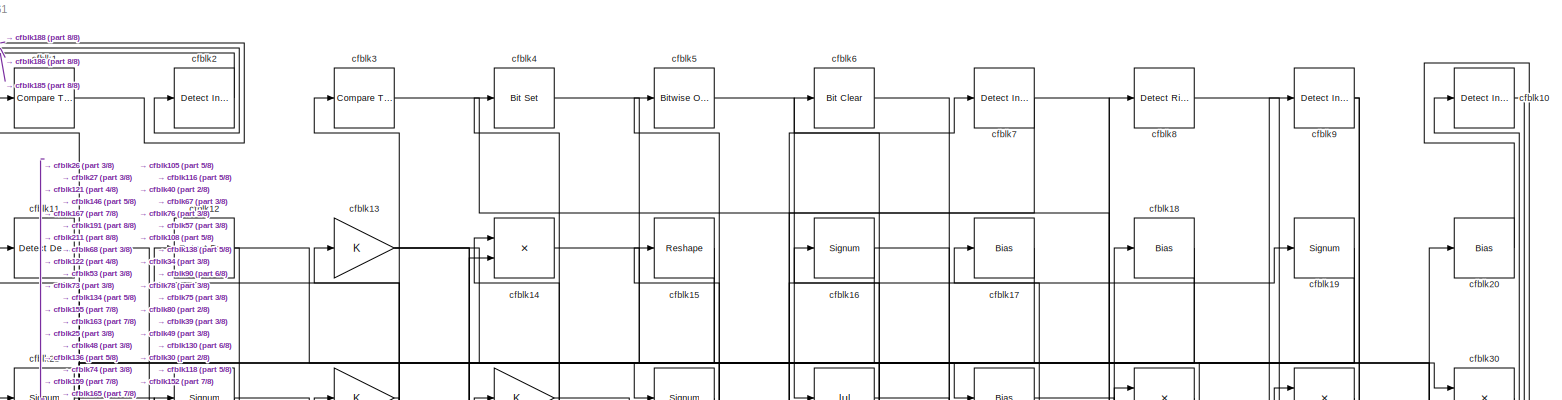
[diagram: root canvas - part 1/8, full width, top band]
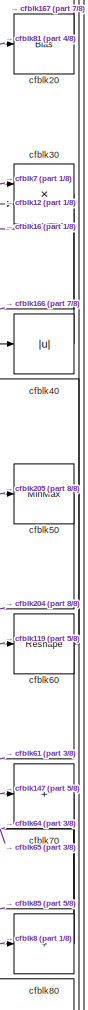
[diagram: root canvas - part 2/8, top right region]
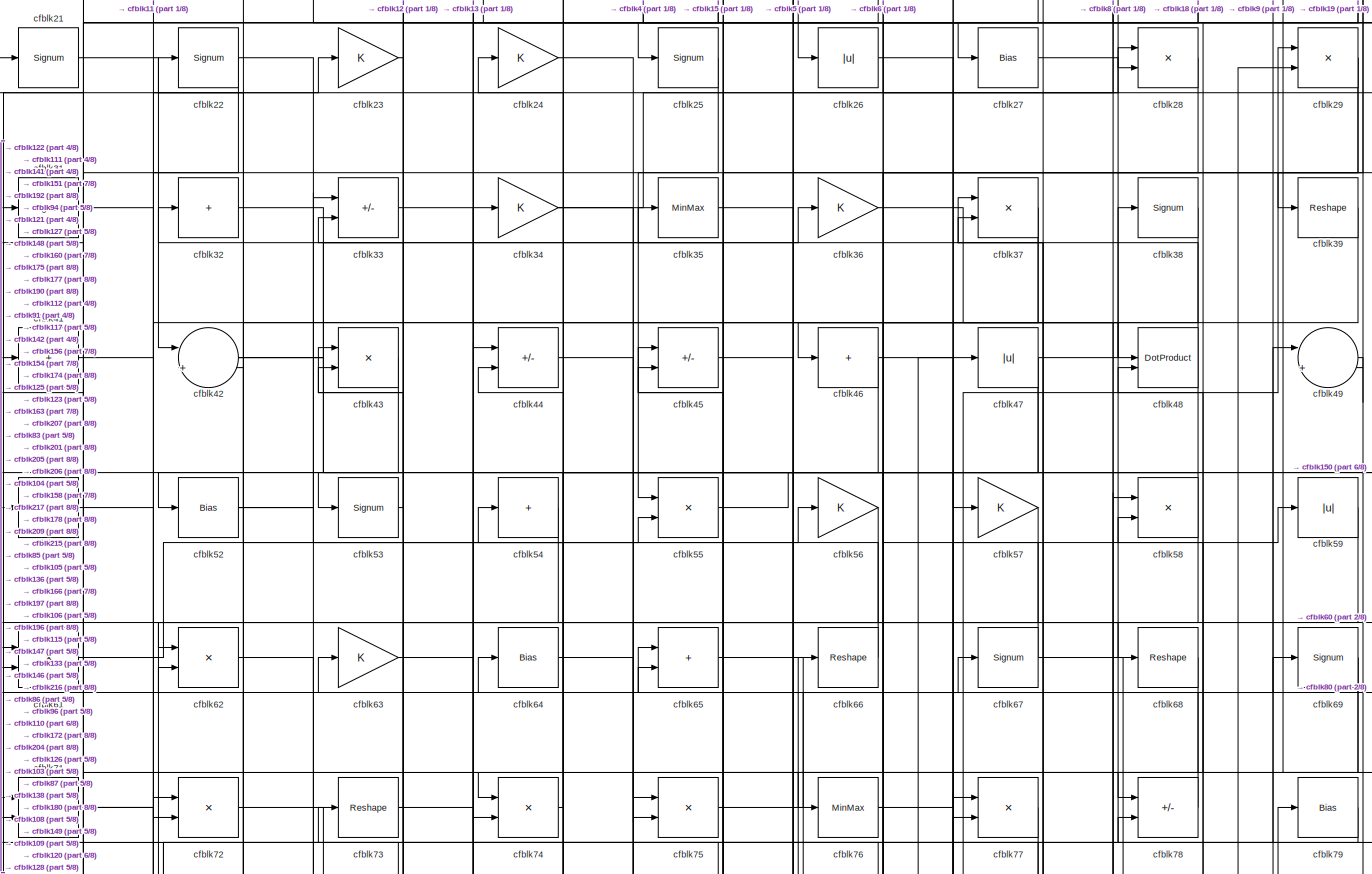
[diagram: root canvas - part 3/8, full width, top band]
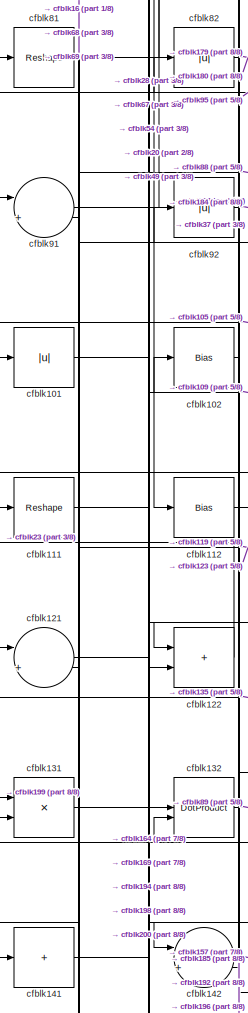
[diagram: root canvas - part 4/8, middle left region]
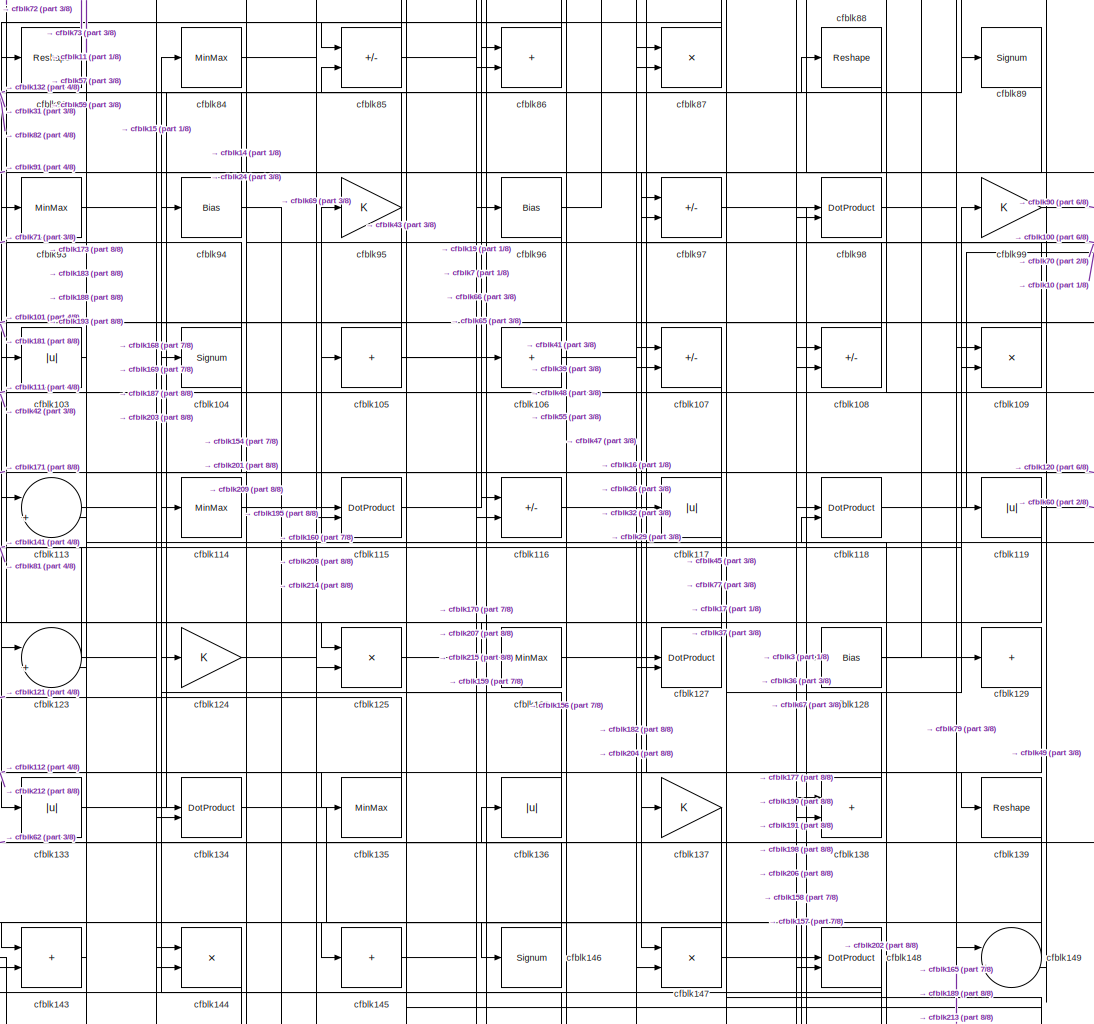
[diagram: root canvas - part 5/8, central region]
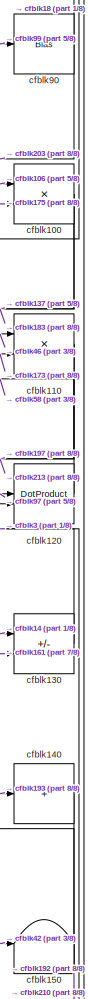
[diagram: root canvas - part 6/8, middle right region]
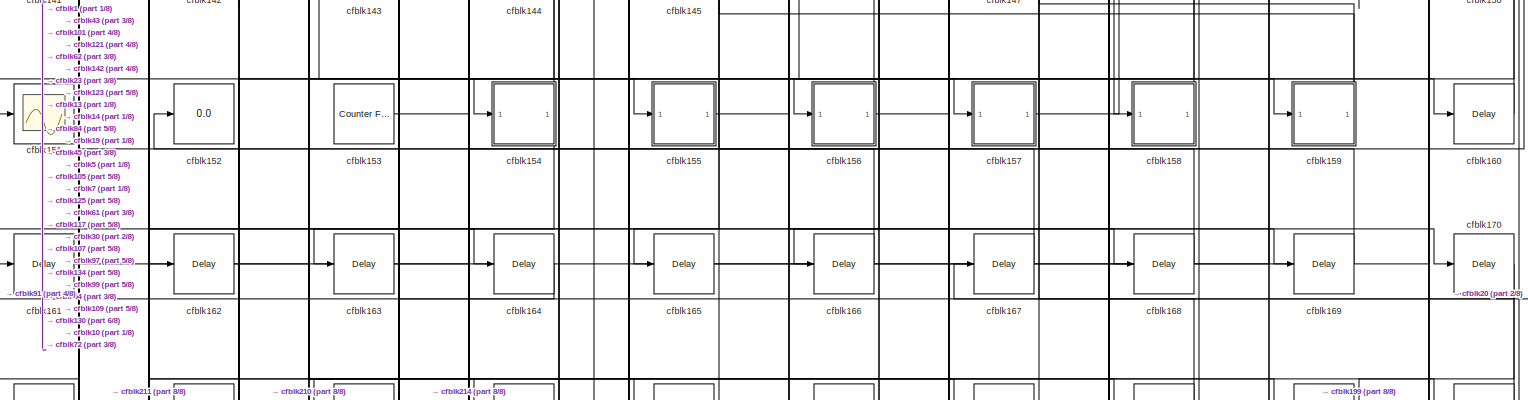
[diagram: root canvas - part 7/8, full width, bottom band]
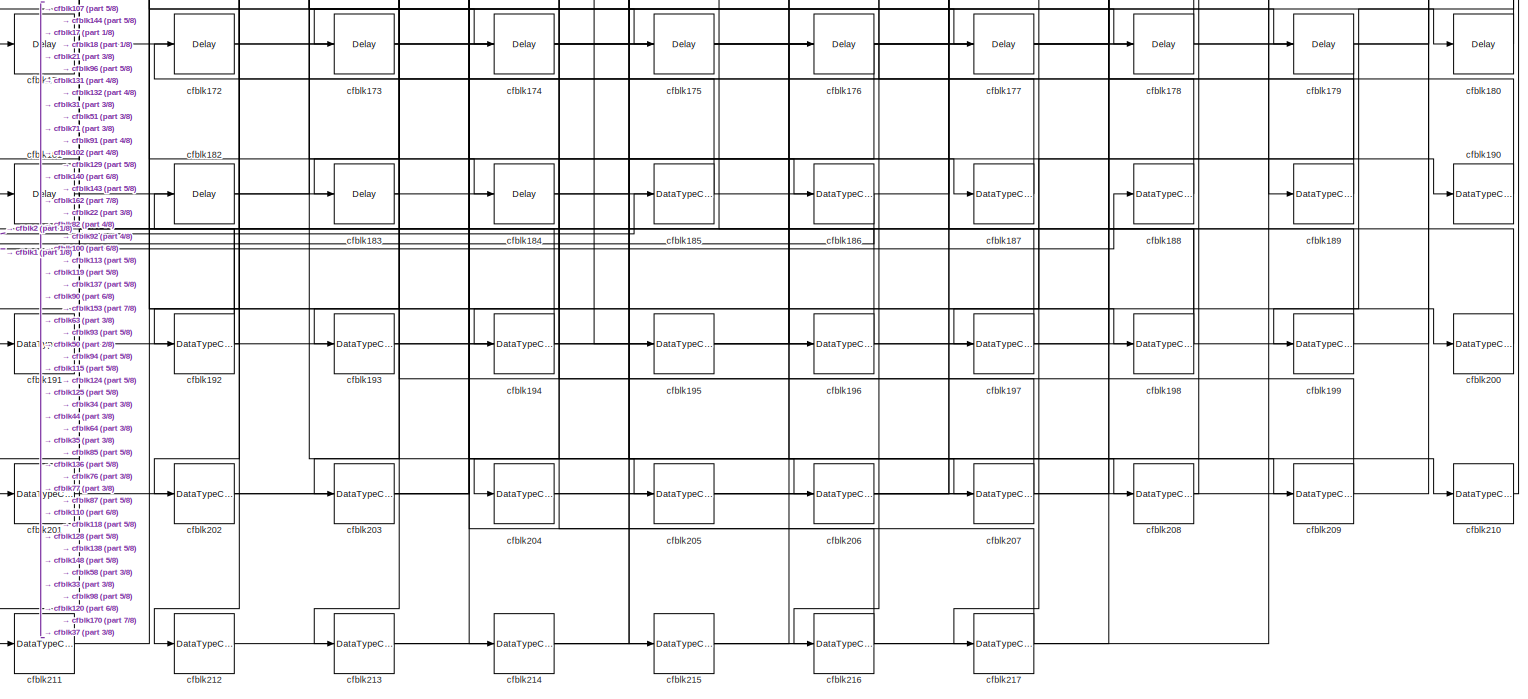
[diagram: root canvas - part 8/8, full width, bottom band]
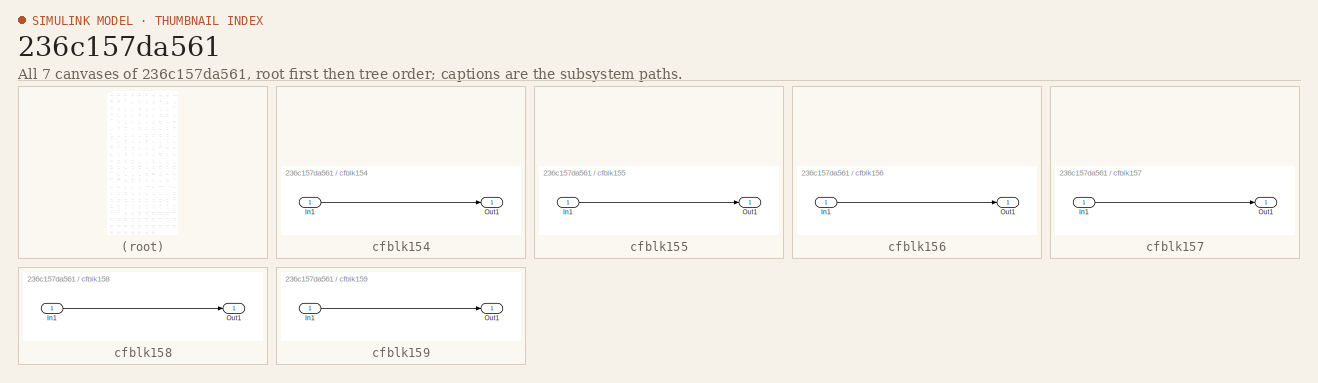
[diagram: thumbnail index - all 7 canvases of the model, root first then tree order]
MODEL slx_236c157da561
KIND model
CONFIG AbsTol = auto
CONFIG EnableMultiTasking = off
CONFIG FixedStep = auto
CONFIG MaxStep = auto
CONFIG MinStep = auto
CONFIG RelTol = 1e-3
CONFIG SampleTimeConstraint = Unconstrained
CONFIG SolverName = VariableStepAuto
CONFIG StartTime = 0.0
CONFIG StopTime = 10.0
BLOCK [Reference] cfblk1  REF=hdlsllib/Logic and Bit
Operations/Compare
To Constant
  SourceBlock = hdlsllib/Logic and Bit\nOperations/Compare\nTo Constant
  SourceType = Compare To Constant
BLOCK [Reference] cfblk10  REF=simulink/Logic and Bit
Operations/Detect
Increase
  LibrarySourceBlock = hdlsllib/Logic and Bit\nOperations/Detect\nIncrease
  SourceBlock = simulink/Logic and Bit\nOperations/Detect\nIncrease
  SourceType = Detect Increase
BLOCK [Product] cfblk100
  Inputs = */
  RndMeth = Zero
  SaturateOnIntegerOverflow = on
BLOCK [Abs] cfblk101
  SaturateOnIntegerOverflow = off
BLOCK [Bias] cfblk102
  Bias = 0.0
  SaturateOnIntegerOverflow = off
BLOCK [Abs] cfblk103
  SaturateOnIntegerOverflow = off
BLOCK [Signum] cfblk104
BLOCK [Sum] cfblk105
  IconShape = rectangular
  Inputs = +
BLOCK [Sum] cfblk106
  IconShape = rectangular
  Inputs = +
BLOCK [Sum] cfblk107
  IconShape = rectangular
  Inputs = +-
BLOCK [Sum] cfblk108
  IconShape = rectangular
  Inputs = +-
BLOCK [Product] cfblk109
  Inputs = */
  RndMeth = Zero
  SaturateOnIntegerOverflow = on
BLOCK [Reference] cfblk11  REF=simulink/Logic and Bit
Operations/Detect
Decrease
  LibrarySourceBlock = hdlsllib/Logic and Bit\nOperations/Detect\nDecrease
  SourceBlock = simulink/Logic and Bit\nOperations/Detect\nDecrease
  SourceType = Detect Decrease
BLOCK [Product] cfblk110
  Inputs = */
  RndMeth = Zero
  SaturateOnIntegerOverflow = on
BLOCK [Reshape] cfblk111
BLOCK [Bias] cfblk112
  Bias = 0.0
  SaturateOnIntegerOverflow = off
BLOCK [Sum] cfblk113
  Inputs = |++
BLOCK [MinMax] cfblk114
BLOCK [DotProduct] cfblk115
  OutDataTypeStr = Inherit: Inherit via internal rule
BLOCK [Sum] cfblk116
  IconShape = rectangular
  Inputs = +-
BLOCK [Abs] cfblk117
  SaturateOnIntegerOverflow = off
BLOCK [DotProduct] cfblk118
  OutDataTypeStr = Inherit: Inherit via internal rule
BLOCK [Abs] cfblk119
  SaturateOnIntegerOverflow = off
BLOCK [Reference] cfblk12  REF=hdlsllib/Logic and Bit
Operations/Detect Fall
Nonpositive
  SourceBlock = hdlsllib/Logic and Bit\nOperations/Detect Fall\nNonpositive
  SourceType = Detect Fall Nonpositive
BLOCK [DotProduct] cfblk120
  OutDataTypeStr = Inherit: Inherit via internal rule
BLOCK [Sum] cfblk121
  Inputs = |++
BLOCK [Sum] cfblk122
  IconShape = rectangular
BLOCK [Sum] cfblk123
  Inputs = |++
BLOCK [Gain] cfblk124
BLOCK [Product] cfblk125
  Inputs = */
  RndMeth = Zero
  SaturateOnIntegerOverflow = on
BLOCK [MinMax] cfblk126
BLOCK [DotProduct] cfblk127
  OutDataTypeStr = Inherit: Inherit via internal rule
BLOCK [Bias] cfblk128
  Bias = 0.0
  SaturateOnIntegerOverflow = off
BLOCK [Sum] cfblk129
  IconShape = rectangular
  Inputs = +
BLOCK [Gain] cfblk13
BLOCK [Sum] cfblk130
  IconShape = rectangular
  Inputs = +-
BLOCK [Product] cfblk131
  Inputs = */
  RndMeth = Zero
  SaturateOnIntegerOverflow = on
BLOCK [DotProduct] cfblk132
  OutDataTypeStr = Inherit: Inherit via internal rule
BLOCK [Abs] cfblk133
  SaturateOnIntegerOverflow = off
BLOCK [DotProduct] cfblk134
  OutDataTypeStr = Inherit: Inherit via internal rule
BLOCK [MinMax] cfblk135
BLOCK [Abs] cfblk136
  SaturateOnIntegerOverflow = off
BLOCK [Gain] cfblk137
BLOCK [Sum] cfblk138
  IconShape = rectangular
BLOCK [Reshape] cfblk139
BLOCK [Product] cfblk14
  Inputs = */
  RndMeth = Zero
  SaturateOnIntegerOverflow = on
BLOCK [Sum] cfblk140
  IconShape = rectangular
  Inputs = +
BLOCK [Sum] cfblk141
  IconShape = rectangular
  Inputs = +
BLOCK [Sum] cfblk142
  Inputs = |++
BLOCK [Sum] cfblk143
  IconShape = rectangular
BLOCK [Product] cfblk144
  Inputs = */
  RndMeth = Zero
  SaturateOnIntegerOverflow = on
BLOCK [Sum] cfblk145
  IconShape = rectangular
  Inputs = +
BLOCK [Signum] cfblk146
BLOCK [Product] cfblk147
  Inputs = */
  RndMeth = Zero
  SaturateOnIntegerOverflow = on
BLOCK [DotProduct] cfblk148
  OutDataTypeStr = Inherit: Inherit via internal rule
BLOCK [Sum] cfblk149
  Inputs = |++
BLOCK [Reshape] cfblk15
BLOCK [Terminator] cfblk150
BLOCK [Scope] cfblk151
  Floating = off
  NumInputPorts = 1
  ScopeSpecificationString = Simulink.scopes.TimeScopeBlockCfg('CurrentConfiguration', extmgr.ConfigurationSet(extmgr.Configuration('Core','General UI',true),extmgr.Configuration('Core','Source UI',true),extmgr.Configuration('Sources','WiredSimulink',true,'DataLoggingVariableName','ScopeData2','DataLoggingSaveFormat','Array','DataLoggingLimitDataPoints',true,'DataLoggingDecimation','1'),extmgr.Configuration('Visuals','Time Do...<+868ch>
BLOCK [Display] cfblk152
  Decimation = 1
BLOCK [Reference] cfblk153  REF=hdlsllib/Sources/Counter
Free-Running
  SourceBlock = hdlsllib/Sources/Counter\nFree-Running
  SourceType = Counter Free-Running
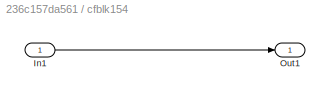
BLOCK [SubSystem] cfblk154
  LibrarySourceBlock = hdlsllib/Ports &\nSubsystems/Subsystem
BLOCK [Inport] cfblk154/In1
BLOCK [Outport] cfblk154/Out1
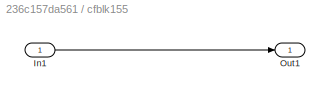
BLOCK [SubSystem] cfblk155
  LibrarySourceBlock = hdlsllib/Ports &\nSubsystems/Subsystem
BLOCK [Inport] cfblk155/In1
BLOCK [Outport] cfblk155/Out1
BLOCK [SubSystem] cfblk156
  LibrarySourceBlock = hdlsllib/Ports &\nSubsystems/Subsystem
BLOCK [Inport] cfblk156/In1
BLOCK [Outport] cfblk156/Out1
BLOCK [SubSystem] cfblk157
  LibrarySourceBlock = hdlsllib/Ports &\nSubsystems/Subsystem
BLOCK [Inport] cfblk157/In1
BLOCK [Outport] cfblk157/Out1
BLOCK [SubSystem] cfblk158
  LibrarySourceBlock = hdlsllib/Ports &\nSubsystems/Subsystem
BLOCK [Inport] cfblk158/In1
BLOCK [Outport] cfblk158/Out1
BLOCK [SubSystem] cfblk159
  LibrarySourceBlock = hdlsllib/Ports &\nSubsystems/Subsystem
BLOCK [Inport] cfblk159/In1
BLOCK [Outport] cfblk159/Out1
BLOCK [Signum] cfblk16
BLOCK [Delay] cfblk160
  InputPortMap = u0
  SampleTime = 1
BLOCK [Delay] cfblk161
  InputPortMap = u0
  SampleTime = 1
BLOCK [Delay] cfblk162
  InputPortMap = u0
  SampleTime = 1
BLOCK [Delay] cfblk163
  InputPortMap = u0
  SampleTime = 1
BLOCK [Delay] cfblk164
  InputPortMap = u0
  SampleTime = 1
BLOCK [Delay] cfblk165
  InputPortMap = u0
  SampleTime = 1
BLOCK [Delay] cfblk166
  InputPortMap = u0
  SampleTime = 1
BLOCK [Delay] cfblk167
  InputPortMap = u0
  SampleTime = 1
BLOCK [Delay] cfblk168
  InputPortMap = u0
  SampleTime = 1
BLOCK [Delay] cfblk169
  InputPortMap = u0
  SampleTime = 1
BLOCK [Bias] cfblk17
  Bias = 0.0
  SaturateOnIntegerOverflow = off
BLOCK [Delay] cfblk170
  InputPortMap = u0
  SampleTime = 1
BLOCK [Delay] cfblk171
  InputPortMap = u0
  SampleTime = 1
BLOCK [Delay] cfblk172
  InputPortMap = u0
  SampleTime = 1
BLOCK [Delay] cfblk173
  InputPortMap = u0
  SampleTime = 1
BLOCK [Delay] cfblk174
  InputPortMap = u0
  SampleTime = 1
BLOCK [Delay] cfblk175
  InputPortMap = u0
  SampleTime = 1
BLOCK [Delay] cfblk176
  InputPortMap = u0
  SampleTime = 1
BLOCK [Delay] cfblk177
  InputPortMap = u0
  SampleTime = 1
BLOCK [Delay] cfblk178
  InputPortMap = u0
  SampleTime = 1
BLOCK [Delay] cfblk179
  InputPortMap = u0
  SampleTime = 1
BLOCK [Bias] cfblk18
  Bias = 0.0
  SaturateOnIntegerOverflow = off
BLOCK [Delay] cfblk180
  InputPortMap = u0
  SampleTime = 1
BLOCK [Delay] cfblk181
  InputPortMap = u0
  SampleTime = 1
BLOCK [Delay] cfblk182
  InputPortMap = u0
  SampleTime = 1
BLOCK [Delay] cfblk183
  InputPortMap = u0
  SampleTime = 1
BLOCK [Delay] cfblk184
  InputPortMap = u0
  SampleTime = 1
BLOCK [DataTypeConversion] cfblk185
  OutDataTypeStr = uint8
  RndMeth = Floor
  SaturateOnIntegerOverflow = off
BLOCK [DataTypeConversion] cfblk186
  OutDataTypeStr = uint8
  RndMeth = Floor
  SaturateOnIntegerOverflow = off
BLOCK [DataTypeConversion] cfblk187
  OutDataTypeStr = uint8
  RndMeth = Floor
  SaturateOnIntegerOverflow = off
BLOCK [DataTypeConversion] cfblk188
  OutDataTypeStr = uint8
  RndMeth = Floor
  SaturateOnIntegerOverflow = off
BLOCK [DataTypeConversion] cfblk189
  OutDataTypeStr = uint8
  RndMeth = Floor
  SaturateOnIntegerOverflow = off
BLOCK [Signum] cfblk19
BLOCK [DataTypeConversion] cfblk190
  OutDataTypeStr = uint8
  RndMeth = Floor
  SaturateOnIntegerOverflow = off
BLOCK [DataTypeConversion] cfblk191
  OutDataTypeStr = uint8
  RndMeth = Floor
  SaturateOnIntegerOverflow = off
BLOCK [DataTypeConversion] cfblk192
  RndMeth = Floor
  SaturateOnIntegerOverflow = off
BLOCK [DataTypeConversion] cfblk193
  OutDataTypeStr = uint8
  RndMeth = Floor
  SaturateOnIntegerOverflow = off
BLOCK [DataTypeConversion] cfblk194
  OutDataTypeStr = uint8
  RndMeth = Floor
  SaturateOnIntegerOverflow = off
BLOCK [DataTypeConversion] cfblk195
  OutDataTypeStr = uint8
  RndMeth = Floor
  SaturateOnIntegerOverflow = off
BLOCK [DataTypeConversion] cfblk196
  OutDataTypeStr = uint8
  RndMeth = Floor
  SaturateOnIntegerOverflow = off
BLOCK [DataTypeConversion] cfblk197
  OutDataTypeStr = uint8
  RndMeth = Floor
  SaturateOnIntegerOverflow = off
BLOCK [DataTypeConversion] cfblk198
  RndMeth = Floor
  SaturateOnIntegerOverflow = off
BLOCK [DataTypeConversion] cfblk199
  OutDataTypeStr = uint8
  RndMeth = Floor
  SaturateOnIntegerOverflow = off
BLOCK [Reference] cfblk2  REF=simulink/Logic and Bit
Operations/Detect
Increase
  LibrarySourceBlock = hdlsllib/Logic and Bit\nOperations/Detect\nIncrease
  SourceBlock = simulink/Logic and Bit\nOperations/Detect\nIncrease
  SourceType = Detect Increase
BLOCK [Bias] cfblk20
  Bias = 0.0
  SaturateOnIntegerOverflow = off
BLOCK [DataTypeConversion] cfblk200
  OutDataTypeStr = uint8
  RndMeth = Floor
  SaturateOnIntegerOverflow = off
BLOCK [DataTypeConversion] cfblk201
  OutDataTypeStr = uint8
  RndMeth = Floor
  SaturateOnIntegerOverflow = off
BLOCK [DataTypeConversion] cfblk202
  OutDataTypeStr = uint8
  RndMeth = Floor
  SaturateOnIntegerOverflow = off
BLOCK [DataTypeConversion] cfblk203
  OutDataTypeStr = uint8
  RndMeth = Floor
  SaturateOnIntegerOverflow = off
BLOCK [DataTypeConversion] cfblk204
  RndMeth = Floor
  SaturateOnIntegerOverflow = off
BLOCK [DataTypeConversion] cfblk205
  OutDataTypeStr = uint8
  RndMeth = Floor
  SaturateOnIntegerOverflow = off
BLOCK [DataTypeConversion] cfblk206
  OutDataTypeStr = uint8
  RndMeth = Floor
  SaturateOnIntegerOverflow = off
BLOCK [DataTypeConversion] cfblk207
  OutDataTypeStr = uint8
  RndMeth = Floor
  SaturateOnIntegerOverflow = off
BLOCK [DataTypeConversion] cfblk208
  OutDataTypeStr = uint8
  RndMeth = Floor
  SaturateOnIntegerOverflow = off
BLOCK [DataTypeConversion] cfblk209
  OutDataTypeStr = uint8
  RndMeth = Floor
  SaturateOnIntegerOverflow = off
BLOCK [Signum] cfblk21
BLOCK [DataTypeConversion] cfblk210
  OutDataTypeStr = uint8
  RndMeth = Floor
  SaturateOnIntegerOverflow = off
BLOCK [DataTypeConversion] cfblk211
  OutDataTypeStr = uint8
  RndMeth = Floor
  SaturateOnIntegerOverflow = off
BLOCK [DataTypeConversion] cfblk212
  OutDataTypeStr = uint8
  RndMeth = Floor
  SaturateOnIntegerOverflow = off
BLOCK [DataTypeConversion] cfblk213
  OutDataTypeStr = uint8
  RndMeth = Floor
  SaturateOnIntegerOverflow = off
BLOCK [DataTypeConversion] cfblk214
  OutDataTypeStr = uint8
  RndMeth = Floor
  SaturateOnIntegerOverflow = off
BLOCK [DataTypeConversion] cfblk215
  OutDataTypeStr = uint8
  RndMeth = Floor
  SaturateOnIntegerOverflow = off
BLOCK [DataTypeConversion] cfblk216
  OutDataTypeStr = uint8
  RndMeth = Floor
  SaturateOnIntegerOverflow = off
BLOCK [DataTypeConversion] cfblk217
  OutDataTypeStr = uint8
  RndMeth = Floor
  SaturateOnIntegerOverflow = off
BLOCK [Signum] cfblk22
BLOCK [Gain] cfblk23
BLOCK [Gain] cfblk24
BLOCK [Signum] cfblk25
BLOCK [Abs] cfblk26
  SaturateOnIntegerOverflow = off
BLOCK [Bias] cfblk27
  Bias = 0.0
  SaturateOnIntegerOverflow = off
BLOCK [Product] cfblk28
  Inputs = */
  RndMeth = Zero
  SaturateOnIntegerOverflow = on
BLOCK [Product] cfblk29
  Inputs = */
  RndMeth = Zero
  SaturateOnIntegerOverflow = on
BLOCK [Reference] cfblk3  REF=hdlsllib/Logic and Bit
Operations/Compare
To Zero
  SourceBlock = hdlsllib/Logic and Bit\nOperations/Compare\nTo Zero
  SourceType = Compare To Zero
BLOCK [Product] cfblk30
  Inputs = */
  RndMeth = Zero
  SaturateOnIntegerOverflow = on
BLOCK [Signum] cfblk31
BLOCK [Sum] cfblk32
  IconShape = rectangular
  Inputs = +
BLOCK [Sum] cfblk33
  IconShape = rectangular
  Inputs = +-
BLOCK [Gain] cfblk34
BLOCK [MinMax] cfblk35
BLOCK [Gain] cfblk36
BLOCK [Product] cfblk37
  Inputs = */
  RndMeth = Zero
  SaturateOnIntegerOverflow = on
BLOCK [Signum] cfblk38
BLOCK [Reshape] cfblk39
BLOCK [Reference] cfblk4  REF=simulink/Logic and Bit
Operations/Bit Set
  LibrarySourceBlock = hdlsllib/Logic and Bit\nOperations/Bit Set
  SourceBlock = simulink/Logic and Bit\nOperations/Bit Set
  SourceType = Bit Set
BLOCK [Abs] cfblk40
  SaturateOnIntegerOverflow = off
BLOCK [Sum] cfblk41
  IconShape = rectangular
  Inputs = +
BLOCK [Sum] cfblk42
  Inputs = |++
BLOCK [Product] cfblk43
  Inputs = */
  RndMeth = Zero
  SaturateOnIntegerOverflow = on
BLOCK [Sum] cfblk44
  IconShape = rectangular
  Inputs = +-
BLOCK [Sum] cfblk45
  IconShape = rectangular
  Inputs = +-
BLOCK [Sum] cfblk46
  IconShape = rectangular
  Inputs = +
BLOCK [Abs] cfblk47
  SaturateOnIntegerOverflow = off
BLOCK [DotProduct] cfblk48
  OutDataTypeStr = Inherit: Inherit via internal rule
BLOCK [Sum] cfblk49
  Inputs = |++
BLOCK [Reference] cfblk5  REF=simulink/Logic and Bit
Operations/Bitwise
Operator
  LibrarySourceBlock = hdlsllib/Logic and Bit\nOperations/Bitwise\nOperator
  SourceBlock = simulink/Logic and Bit\nOperations/Bitwise\nOperator
  SourceType = Bitwise Operator
BLOCK [MinMax] cfblk50
BLOCK [Sum] cfblk51
  IconShape = rectangular
  Inputs = +
BLOCK [Bias] cfblk52
  Bias = 0.0
  SaturateOnIntegerOverflow = off
BLOCK [Signum] cfblk53
BLOCK [Sum] cfblk54
  IconShape = rectangular
  Inputs = +
BLOCK [Product] cfblk55
  Inputs = */
  RndMeth = Zero
  SaturateOnIntegerOverflow = on
BLOCK [Gain] cfblk56
BLOCK [Gain] cfblk57
BLOCK [Product] cfblk58
  Inputs = */
  RndMeth = Zero
  SaturateOnIntegerOverflow = on
BLOCK [Abs] cfblk59
  SaturateOnIntegerOverflow = off
BLOCK [Reference] cfblk6  REF=simulink/Logic and Bit
Operations/Bit Clear
  LibrarySourceBlock = hdlsllib/Logic and Bit\nOperations/Bit Clear
  SourceBlock = simulink/Logic and Bit\nOperations/Bit Clear
  SourceType = Bit Clear
BLOCK [Reshape] cfblk60
BLOCK [Product] cfblk61
  Inputs = */
  RndMeth = Zero
  SaturateOnIntegerOverflow = on
BLOCK [Product] cfblk62
  Inputs = */
  RndMeth = Zero
  SaturateOnIntegerOverflow = on
BLOCK [Gain] cfblk63
BLOCK [Bias] cfblk64
  Bias = 0.0
  SaturateOnIntegerOverflow = off
BLOCK [Sum] cfblk65
  IconShape = rectangular
BLOCK [Reshape] cfblk66
BLOCK [Signum] cfblk67
BLOCK [Reshape] cfblk68
BLOCK [Signum] cfblk69
BLOCK [Reference] cfblk7  REF=simulink/Logic and Bit
Operations/Detect
Increase
  LibrarySourceBlock = hdlsllib/Logic and Bit\nOperations/Detect\nIncrease
  SourceBlock = simulink/Logic and Bit\nOperations/Detect\nIncrease
  SourceType = Detect Increase
BLOCK [Sum] cfblk70
  IconShape = rectangular
  Inputs = +
BLOCK [Sum] cfblk71
  IconShape = rectangular
BLOCK [Product] cfblk72
  Inputs = */
  RndMeth = Zero
  SaturateOnIntegerOverflow = on
BLOCK [Reshape] cfblk73
BLOCK [Product] cfblk74
  Inputs = */
  RndMeth = Zero
  SaturateOnIntegerOverflow = on
BLOCK [Product] cfblk75
  Inputs = */
  RndMeth = Zero
  SaturateOnIntegerOverflow = on
BLOCK [MinMax] cfblk76
BLOCK [Product] cfblk77
  Inputs = */
  RndMeth = Zero
  SaturateOnIntegerOverflow = on
BLOCK [Sum] cfblk78
  IconShape = rectangular
  Inputs = +-
BLOCK [Bias] cfblk79
  Bias = 0.0
  SaturateOnIntegerOverflow = off
BLOCK [Reference] cfblk8  REF=hdlsllib/Logic and Bit
Operations/Detect Rise
Positive
  SourceBlock = hdlsllib/Logic and Bit\nOperations/Detect Rise\nPositive
  SourceType = Detect Rise Positive
BLOCK [Sum] cfblk80
  IconShape = rectangular
  Inputs = +
BLOCK [Reshape] cfblk81
BLOCK [Abs] cfblk82
  SaturateOnIntegerOverflow = off
BLOCK [Reshape] cfblk83
BLOCK [MinMax] cfblk84
BLOCK [Sum] cfblk85
  IconShape = rectangular
  Inputs = +-
BLOCK [Sum] cfblk86
  IconShape = rectangular
BLOCK [Product] cfblk87
  Inputs = */
  RndMeth = Zero
  SaturateOnIntegerOverflow = on
BLOCK [Reshape] cfblk88
BLOCK [Signum] cfblk89
BLOCK [Reference] cfblk9  REF=simulink/Logic and Bit
Operations/Detect
Increase
  LibrarySourceBlock = hdlsllib/Logic and Bit\nOperations/Detect\nIncrease
  SourceBlock = simulink/Logic and Bit\nOperations/Detect\nIncrease
  SourceType = Detect Increase
BLOCK [Bias] cfblk90
  Bias = 0.0
  SaturateOnIntegerOverflow = off
BLOCK [Sum] cfblk91
  Inputs = |++
BLOCK [Abs] cfblk92
  SaturateOnIntegerOverflow = off
BLOCK [MinMax] cfblk93
BLOCK [Bias] cfblk94
  Bias = 0.0
  SaturateOnIntegerOverflow = off
BLOCK [Gain] cfblk95
BLOCK [Bias] cfblk96
  Bias = 0.0
  SaturateOnIntegerOverflow = off
BLOCK [Sum] cfblk97
  IconShape = rectangular
  Inputs = +-
BLOCK [DotProduct] cfblk98
  OutDataTypeStr = Inherit: Inherit via internal rule
BLOCK [Gain] cfblk99
NET cfblk100:1 -> cfblk137:1, cfblk183:1
LINE cfblk101:1 -> cfblk164:1
LINE cfblk102:1 -> cfblk142:1
LINE cfblk103:1 -> cfblk143:1
NET cfblk104:1 -> cfblk123:2, cfblk71:1
NET cfblk105:1 -> cfblk101:1, cfblk170:1, cfblk19:1
LINE cfblk106:1 -> cfblk100:1
LINE cfblk107:1 -> cfblk171:1
LINE cfblk108:1 -> cfblk17:1
NET cfblk109:1 -> cfblk24:1, cfblk48:2
LINE cfblk10:1 -> cfblk152:1
NET cfblk110:1 -> cfblk197:1, cfblk213:1
LINE cfblk111:1 -> cfblk109:2
LINE cfblk112:1 -> cfblk135:1
LINE cfblk113:1 -> cfblk88:1
LINE cfblk114:1 -> cfblk116:1
LINE cfblk115:1 -> cfblk66:1
LINE cfblk116:1 -> cfblk139:1
NET cfblk117:1 -> cfblk156:1, cfblk42:2
LINE cfblk118:1 -> cfblk10:1
NET cfblk119:1 -> cfblk173:1, cfblk60:1
LINE cfblk11:1 -> cfblk68:1
LINE cfblk120:1 -> cfblk58:2
NET cfblk121:1 -> cfblk169:1, cfblk67:1
LINE cfblk122:1 -> cfblk23:1
NET cfblk123:1 -> cfblk168:1, cfblk81:1
LINE cfblk124:1 -> cfblk208:1
LINE cfblk125:1 -> cfblk159:1
LINE cfblk126:1 -> cfblk29:1
LINE cfblk127:1 -> cfblk95:1
NET cfblk128:1 -> cfblk29:2, cfblk69:1
LINE cfblk129:1 -> cfblk212:1
NET cfblk12:1 -> cfblk122:1, cfblk30:2
LINE cfblk130:1 -> cfblk3:1
LINE cfblk131:1 -> cfblk198:1
LINE cfblk132:1 -> cfblk89:1
LINE cfblk133:1 -> cfblk79:1
LINE cfblk134:1 -> cfblk158:1
LINE cfblk135:1 -> cfblk121:1
NET cfblk136:1 -> cfblk14:1, cfblk65:2
LINE cfblk137:1 -> cfblk193:1
LINE cfblk138:1 -> cfblk37:1
LINE cfblk139:1 -> cfblk145:1
NET cfblk13:1 -> cfblk155:1, cfblk25:1, cfblk48:1
LINE cfblk140:1 -> cfblk192:1
LINE cfblk141:1 -> cfblk119:1
LINE cfblk142:1 -> cfblk157:1
LINE cfblk143:1 -> cfblk113:1
LINE cfblk144:1 -> cfblk201:1
LINE cfblk145:1 -> cfblk86:2
NET cfblk146:1 -> cfblk11:1, cfblk43:1
NET cfblk147:1 -> cfblk70:1, cfblk85:2
LINE cfblk148:1 -> cfblk202:1
LINE cfblk149:1 -> cfblk62:2
LINE cfblk14:1 -> cfblk130:1
LINE cfblk153:1 -> cfblk214:1
LINE cfblk154/In1:1 -> cfblk154/Out1:1
NET cfblk154:1 -> cfblk161:1, cfblk84:1
LINE cfblk155/In1:1 -> cfblk155/Out1:1
LINE cfblk155:1 -> cfblk7:1
LINE cfblk156/In1:1 -> cfblk156/Out1:1
NET cfblk156:1 -> cfblk107:1, cfblk61:2
LINE cfblk157/In1:1 -> cfblk157/Out1:1
LINE cfblk157:1 -> cfblk99:1
LINE cfblk158/In1:1 -> cfblk158/Out1:1
LINE cfblk158:1 -> cfblk54:1
LINE cfblk159/In1:1 -> cfblk159/Out1:1
NET cfblk159:1 -> cfblk5:1, cfblk97:1
NET cfblk15:1 -> cfblk134:2, cfblk53:1
LINE cfblk160:1 -> cfblk72:1
LINE cfblk161:1 -> cfblk130:2
LINE cfblk162:1 -> cfblk210:1
LINE cfblk163:1 -> cfblk14:2
LINE cfblk164:1 -> cfblk91:1
LINE cfblk165:1 -> cfblk109:1
LINE cfblk166:1 -> cfblk45:2
LINE cfblk167:1 -> cfblk1:1
LINE cfblk168:1 -> cfblk97:2
LINE cfblk169:1 -> cfblk134:1
NET cfblk16:1 -> cfblk108:2, cfblk121:2
LINE cfblk170:1 -> cfblk199:1
LINE cfblk171:1 -> cfblk125:2
LINE cfblk172:1 -> cfblk77:2
LINE cfblk173:1 -> cfblk110:2
LINE cfblk174:1 -> cfblk58:1
LINE cfblk175:1 -> cfblk100:2
LINE cfblk176:1 -> cfblk194:1
LINE cfblk177:1 -> cfblk138:2
LINE cfblk178:1 -> cfblk33:2
LINE cfblk179:1 -> cfblk217:1
LINE cfblk17:1 -> cfblk191:1
LINE cfblk180:1 -> cfblk37:2
LINE cfblk181:1 -> cfblk143:2
LINE cfblk182:1 -> cfblk87:2
LINE cfblk183:1 -> cfblk113:2
LINE cfblk184:1 -> cfblk186:1
LINE cfblk185:1 -> cfblk92:1
LINE cfblk186:1 -> cfblk2:1
LINE cfblk187:1 -> cfblk136:1
LINE cfblk188:1 -> cfblk93:1
LINE cfblk189:1 -> cfblk172:1
NET cfblk18:1 -> cfblk211:1, cfblk76:1
LINE cfblk190:1 -> cfblk98:1
LINE cfblk191:1 -> cfblk98:2
NET cfblk192:1 -> cfblk102:1, cfblk182:1, cfblk21:1
LINE cfblk193:1 -> cfblk140:1
LINE cfblk194:1 -> cfblk132:1
LINE cfblk195:1 -> cfblk176:1
LINE cfblk196:1 -> cfblk132:2
LINE cfblk197:1 -> cfblk35:1
NET cfblk198:1 -> cfblk148:1, cfblk87:1
LINE cfblk199:1 -> cfblk131:1
NET cfblk19:1 -> cfblk165:1, cfblk78:1
LINE cfblk1:1 -> cfblk188:1
LINE cfblk200:1 -> cfblk131:2
LINE cfblk201:1 -> cfblk34:1
LINE cfblk202:1 -> cfblk144:1
LINE cfblk203:1 -> cfblk144:2
NET cfblk204:1 -> cfblk107:2, cfblk77:1
LINE cfblk205:1 -> cfblk50:1
LINE cfblk206:1 -> cfblk118:1
LINE cfblk207:1 -> cfblk63:1
LINE cfblk208:1 -> cfblk118:2
LINE cfblk209:1 -> cfblk124:1
LINE cfblk20:1 -> cfblk167:1
LINE cfblk210:1 -> cfblk120:2
LINE cfblk211:1 -> cfblk162:1
LINE cfblk212:1 -> cfblk128:1
LINE cfblk213:1 -> cfblk129:1
LINE cfblk214:1 -> cfblk115:1
LINE cfblk215:1 -> cfblk96:1
LINE cfblk216:1 -> cfblk44:1
LINE cfblk217:1 -> cfblk44:2
LINE cfblk21:1 -> cfblk42:1
NET cfblk22:1 -> cfblk174:1, cfblk51:1
LINE cfblk23:1 -> cfblk163:1
LINE cfblk24:1 -> cfblk75:1
LINE cfblk25:1 -> cfblk55:1
LINE cfblk26:1 -> cfblk127:1
LINE cfblk27:1 -> cfblk28:2
LINE cfblk28:1 -> cfblk122:2
NET cfblk29:1 -> cfblk105:1, cfblk86:1
LINE cfblk2:1 -> cfblk185:1
LINE cfblk30:1 -> cfblk166:1
LINE cfblk31:1 -> cfblk190:1
LINE cfblk32:1 -> cfblk117:1
LINE cfblk33:1 -> cfblk205:1
NET cfblk34:1 -> cfblk178:1, cfblk8:1
LINE cfblk35:1 -> cfblk196:1
LINE cfblk36:1 -> cfblk108:1
NET cfblk37:1 -> cfblk142:2, cfblk72:2
LINE cfblk38:1 -> cfblk46:1
LINE cfblk39:1 -> cfblk126:1
LINE cfblk3:1 -> cfblk138:1
LINE cfblk40:1 -> cfblk16:1
LINE cfblk41:1 -> cfblk28:1
NET cfblk42:1 -> cfblk150:1, cfblk36:1
LINE cfblk43:1 -> cfblk151:1
LINE cfblk44:1 -> cfblk215:1
LINE cfblk45:1 -> cfblk106:1
NET cfblk46:1 -> cfblk110:1, cfblk74:1
NET cfblk47:1 -> cfblk104:1, cfblk38:1, cfblk74:2
NET cfblk48:1 -> cfblk146:1, cfblk32:1
LINE cfblk49:1 -> cfblk149:2
LINE cfblk4:1 -> cfblk27:1
LINE cfblk50:1 -> cfblk204:1
LINE cfblk51:1 -> cfblk175:1
NET cfblk52:1 -> cfblk33:1, cfblk55:2
LINE cfblk53:1 -> cfblk12:1
LINE cfblk54:1 -> cfblk112:1
LINE cfblk55:1 -> cfblk133:1
LINE cfblk56:1 -> cfblk62:1
LINE cfblk57:1 -> cfblk123:1
NET cfblk58:1 -> cfblk52:1, cfblk75:2
LINE cfblk59:1 -> cfblk83:1
LINE cfblk5:1 -> cfblk26:1
NET cfblk60:1 -> cfblk40:1, cfblk61:1
LINE cfblk61:1 -> cfblk56:1
LINE cfblk62:1 -> cfblk154:1
LINE cfblk63:1 -> cfblk206:1
LINE cfblk64:1 -> cfblk209:1
LINE cfblk65:1 -> cfblk147:2
LINE cfblk66:1 -> cfblk22:1
NET cfblk67:1 -> cfblk149:1, cfblk6:1
LINE cfblk68:1 -> cfblk141:1
NET cfblk69:1 -> cfblk111:1, cfblk115:2
LINE cfblk6:1 -> cfblk57:1
LINE cfblk70:1 -> cfblk85:1
NET cfblk71:1 -> cfblk127:2, cfblk148:2, cfblk177:1
LINE cfblk72:1 -> cfblk125:1
NET cfblk73:1 -> cfblk13:1, cfblk78:2
LINE cfblk74:1 -> cfblk4:1
LINE cfblk75:1 -> cfblk9:1
NET cfblk76:1 -> cfblk216:1, cfblk59:1
LINE cfblk77:1 -> cfblk103:1
LINE cfblk78:1 -> cfblk15:1
LINE cfblk79:1 -> cfblk71:2
NET cfblk7:1 -> cfblk116:2, cfblk30:1
NET cfblk80:1 -> cfblk64:1, cfblk65:1
LINE cfblk81:1 -> cfblk20:1
NET cfblk82:1 -> cfblk179:1, cfblk180:1
LINE cfblk83:1 -> cfblk73:1
LINE cfblk84:1 -> cfblk160:1
NET cfblk85:1 -> cfblk207:1, cfblk43:2
LINE cfblk86:1 -> cfblk41:1
LINE cfblk87:1 -> cfblk45:1
NET cfblk88:1 -> cfblk147:1, cfblk91:2
LINE cfblk89:1 -> cfblk94:1
LINE cfblk8:1 -> cfblk80:1
NET cfblk90:1 -> cfblk18:1, cfblk203:1
NET cfblk91:1 -> cfblk200:1, cfblk49:1
LINE cfblk92:1 -> cfblk184:1
LINE cfblk93:1 -> cfblk187:1
NET cfblk94:1 -> cfblk195:1, cfblk31:1
NET cfblk95:1 -> cfblk114:1, cfblk82:1
NET cfblk96:1 -> cfblk181:1, cfblk47:1
LINE cfblk97:1 -> cfblk120:1
LINE cfblk98:1 -> cfblk189:1
LINE cfblk99:1 -> cfblk90:1
NET cfblk9:1 -> cfblk39:1, cfblk49:2
note: NET lines group one-source signal fan-out (src -> all destinations, sorted); 1:1 wires keep LINE
